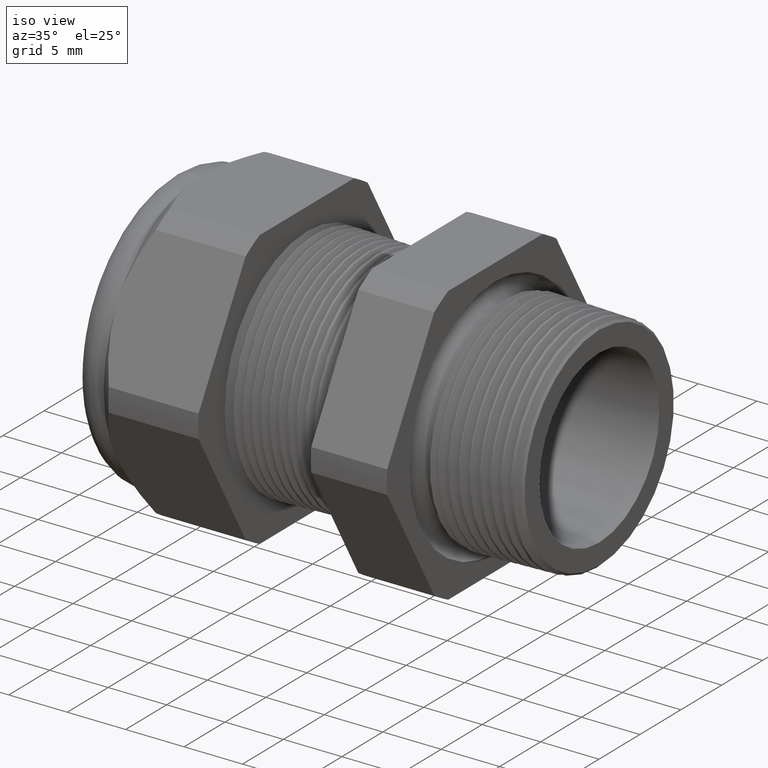
[diagram: clean part render]
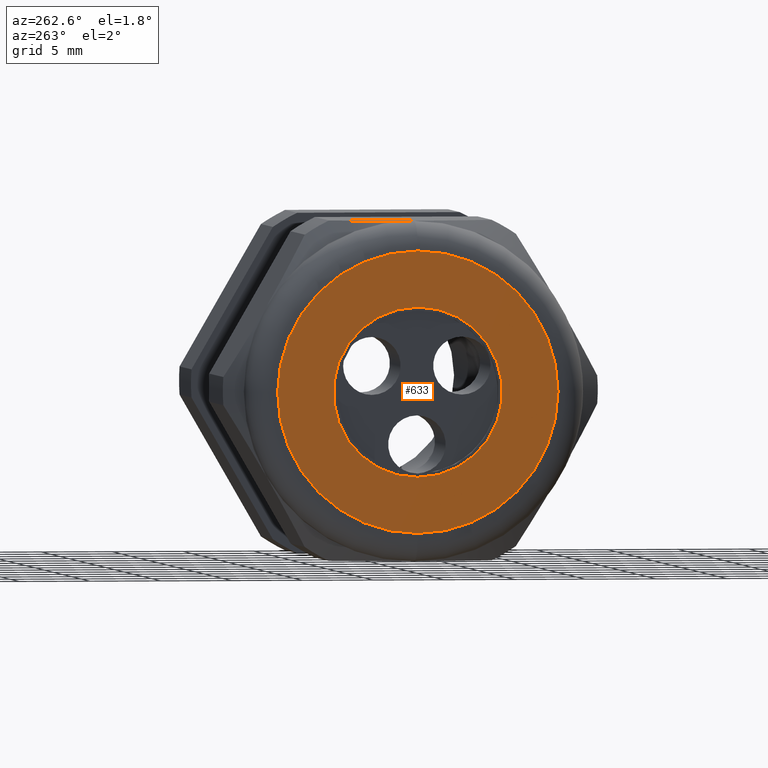
[diagram: tour spotlight — one face highlighted and labeled with its STEP entity id]
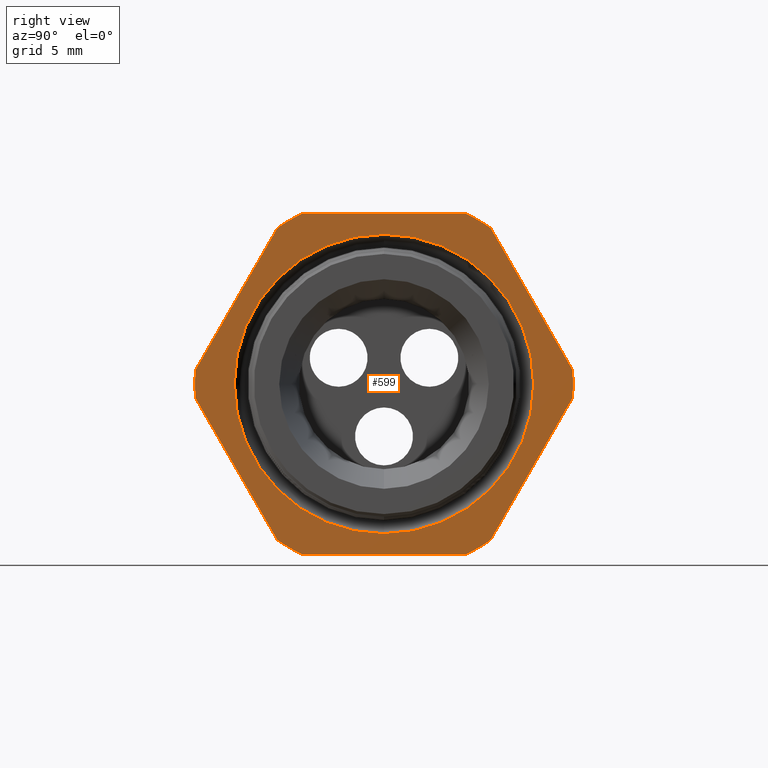
[diagram: tour spotlight — one face highlighted and labeled with its STEP entity id]
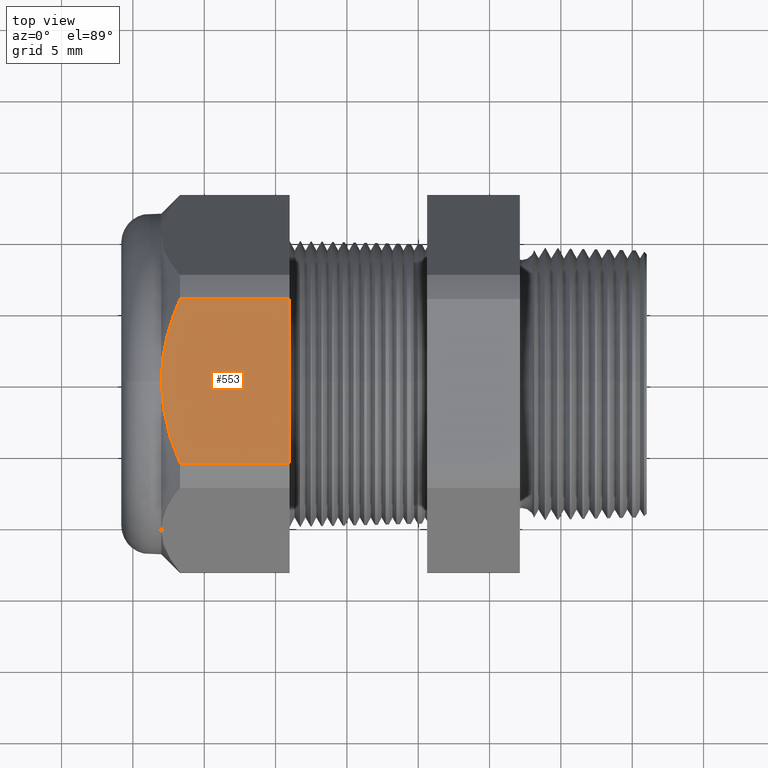
[diagram: tour spotlight — one face highlighted and labeled with its STEP entity id]
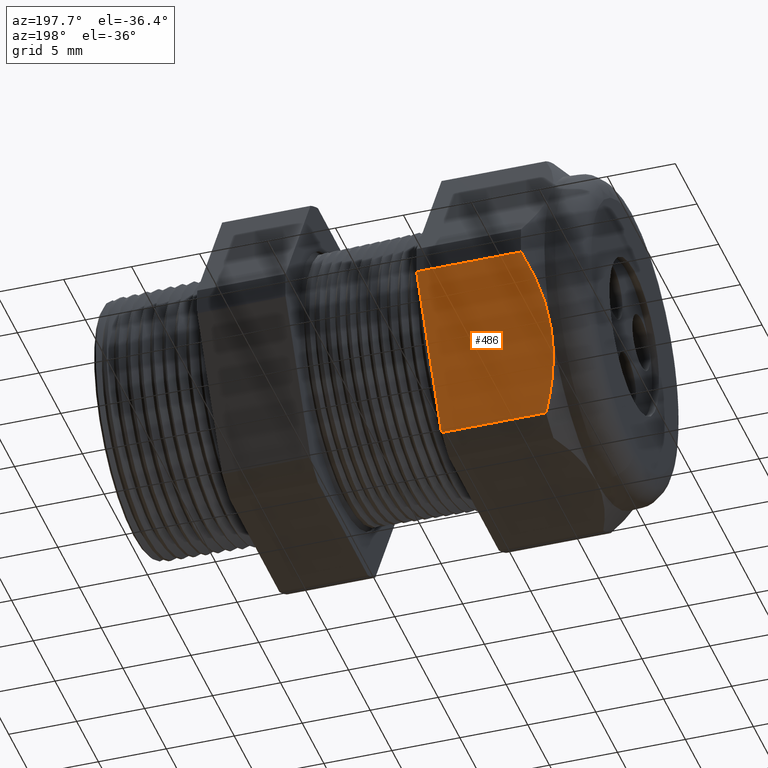
[diagram: tour spotlight — one face highlighted and labeled with its STEP entity id]
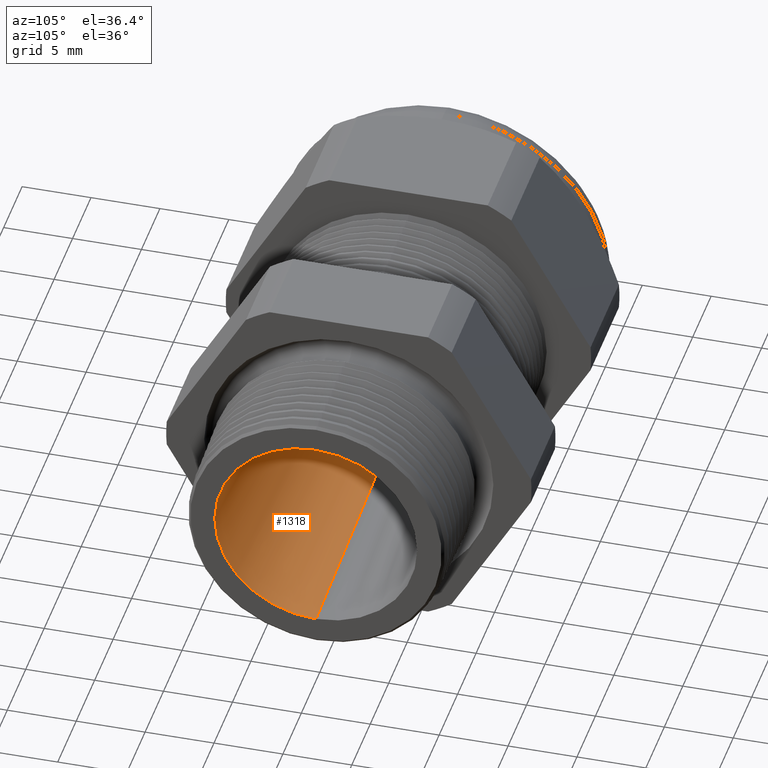
[diagram: tour spotlight — one face highlighted and labeled with its STEP entity id]
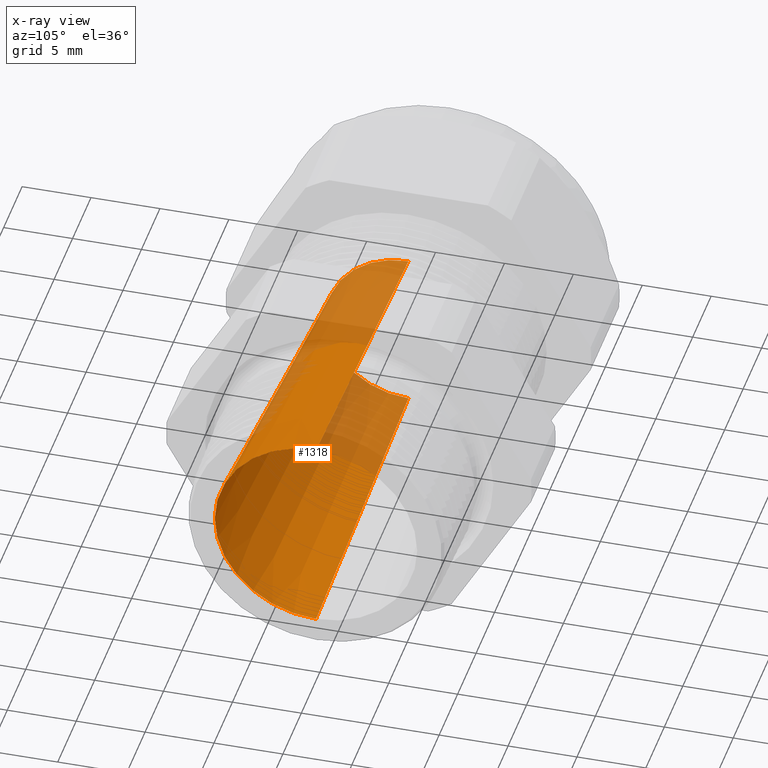
[diagram: x-ray of the same camera — body ghosted, this tour face saturated]
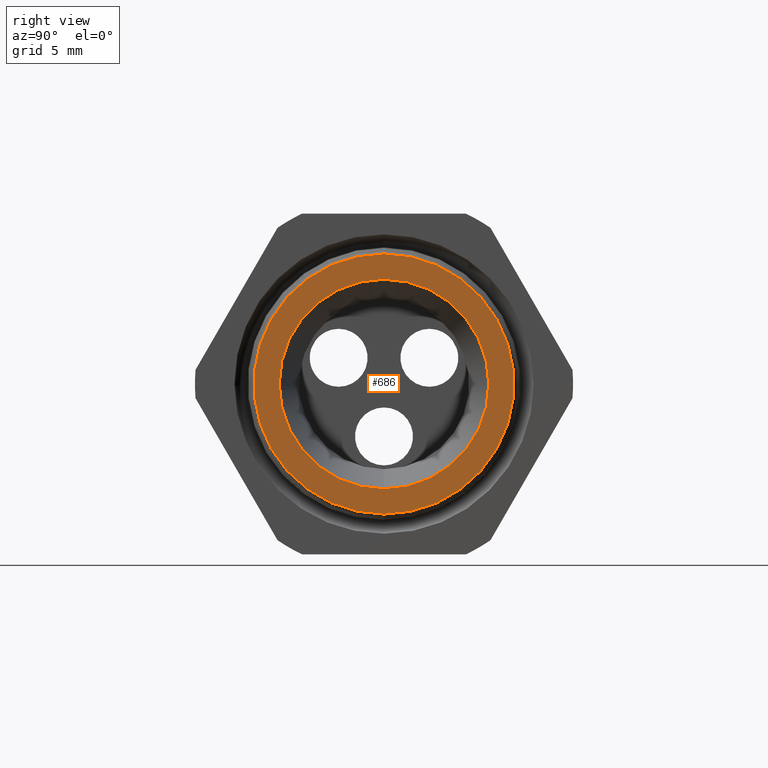
[diagram: tour spotlight — one face highlighted and labeled with its STEP entity id]
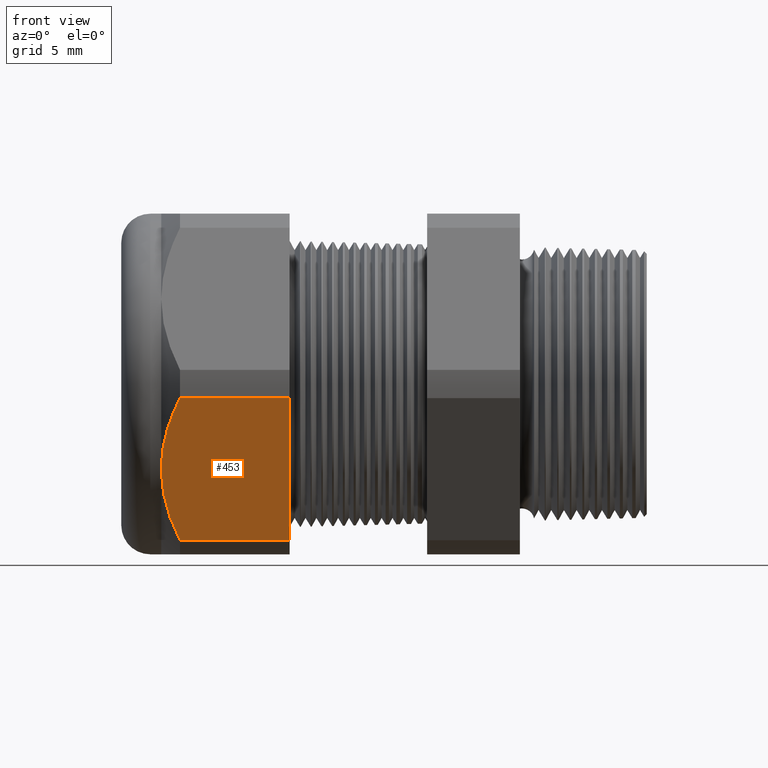
[diagram: tour spotlight — one face highlighted and labeled with its STEP entity id]
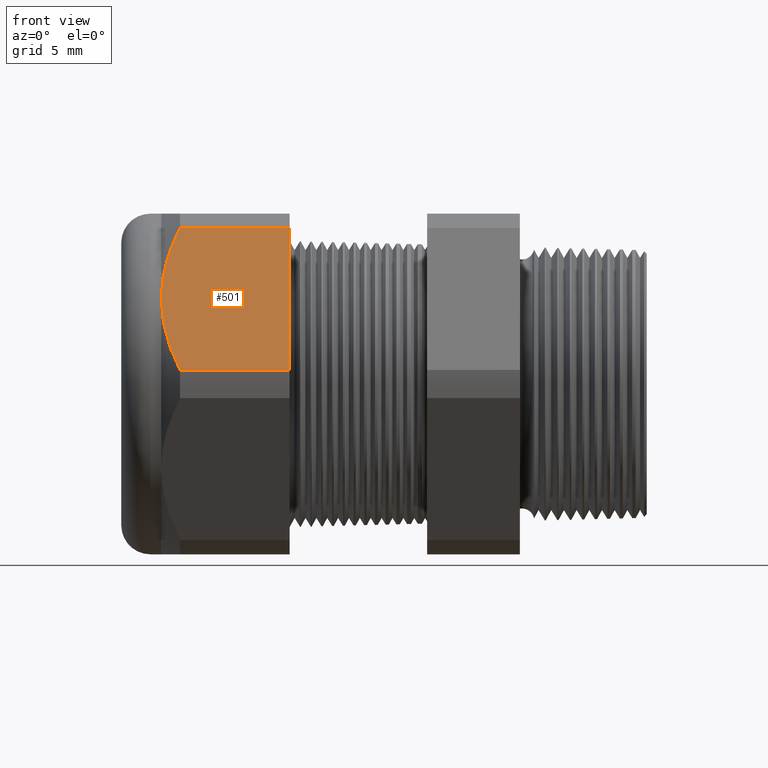
[diagram: tour spotlight — one face highlighted and labeled with its STEP entity id]
A machine part: a face-by-face anatomy tour. The part has 192 B-rep faces; the first image is the clean iso view, then the 8 largest visible faces are spotlighted one at a time (largest first), each with its STEP entity span.

Face 1 — auxiliary view, entity #633. In plain terms, the highlighted planar face has unit normal (-1, 0, 0).
Definition (entity closure, byte-faithful):
#615 = ORIENTED_EDGE ( 'NONE', *, *, #616, .T. ) ;
#616 = EDGE_CURVE ( 'NONE', #1390, #1389, #3014, .T. ) ;
#617 = ORIENTED_EDGE ( 'NONE', *, *, #1388, .T. ) ;
#633 = ADVANCED_FACE ( 'NONE', ( #3045, #3044 ), #3043, .T. ) ;
#634 = EDGE_LOOP ( 'NONE', ( #691, #692 ) ) ;
#691 = ORIENTED_EDGE ( 'NONE', *, *, #1334, .T. ) ;
#692 = ORIENTED_EDGE ( 'NONE', *, *, #693, .T. ) ;
#693 = EDGE_CURVE ( 'NONE', #1332, #1335, #3186, .T. ) ;
#694 = EDGE_LOOP ( 'NONE', ( #615, #617 ) ) ;
#1332 = VERTEX_POINT ( 'NONE', #4099 ) ;
#1334 = EDGE_CURVE ( 'NONE', #1335, #1332, #4098, .T. ) ;
#1335 = VERTEX_POINT ( 'NONE', #4093 ) ;
#1388 = EDGE_CURVE ( 'NONE', #1389, #1390, #4247, .T. ) ;
#1389 = VERTEX_POINT ( 'NONE', #4238 ) ;
#1390 = VERTEX_POINT ( 'NONE', #4237 ) ;
#3011 = DIRECTION ( 'NONE',  ( 0.0000000000000000000, 0.0000000000000000000, -1.000000000000000000 ) ) ;
#3012 = DIRECTION ( 'NONE',  ( 1.000000000000000000, 0.0000000000000000000, 0.0000000000000000000 ) ) ;
#3013 = AXIS2_PLACEMENT_3D ( 'NONE', #3031, #3012, #3011 ) ;
#3014 = CIRCLE ( 'NONE', #3013, 0.2349999999999999900 ) ;
#3031 = CARTESIAN_POINT ( 'NONE',  ( -1.409999999999999900, 0.0000000000000000000, 0.0000000000000000000 ) ) ;
#3039 = DIRECTION ( 'NONE',  ( 0.0000000000000000000, 0.0000000000000000000, 1.000000000000000000 ) ) ;
#3040 = DIRECTION ( 'NONE',  ( -1.000000000000000000, 0.0000000000000000000, 0.0000000000000000000 ) ) ;
#3041 = CARTESIAN_POINT ( 'NONE',  ( -1.409999999999999900, 0.4699999999999999200, 0.0000000000000000000 ) ) ;
#3042 = AXIS2_PLACEMENT_3D ( 'NONE', #3041, #3040, #3039 ) ;
#3043 = PLANE ( 'NONE',  #3042 ) ;
#3044 = FACE_BOUND ( 'NONE', #694, .T. ) ;
#3045 = FACE_OUTER_BOUND ( 'NONE', #634, .T. ) ;
#3182 = DIRECTION ( 'NONE',  ( 0.0000000000000000000, 0.0000000000000000000, 1.000000000000000000 ) ) ;
#3183 = DIRECTION ( 'NONE',  ( -1.000000000000000000, 0.0000000000000000000, 0.0000000000000000000 ) ) ;
#3184 = CARTESIAN_POINT ( 'NONE',  ( -1.409999999999999900, 0.0000000000000000000, 0.0000000000000000000 ) ) ;
#3185 = AXIS2_PLACEMENT_3D ( 'NONE', #3184, #3183, #3182 ) ;
#3186 = CIRCLE ( 'NONE', #3185, 0.3899999999999999600 ) ;
#4093 = CARTESIAN_POINT ( 'NONE',  ( -1.409999999999999900, 0.0000000000000000000, 0.3899999999999999600 ) ) ;
#4094 = DIRECTION ( 'NONE',  ( 0.0000000000000000000, 0.0000000000000000000, 1.000000000000000000 ) ) ;
#4095 = DIRECTION ( 'NONE',  ( -1.000000000000000000, 0.0000000000000000000, 0.0000000000000000000 ) ) ;
#4096 = CARTESIAN_POINT ( 'NONE',  ( -1.409999999999999900, 0.0000000000000000000, 0.0000000000000000000 ) ) ;
#4097 = AXIS2_PLACEMENT_3D ( 'NONE', #4096, #4095, #4094 ) ;
#4098 = CIRCLE ( 'NONE', #4097, 0.3899999999999999600 ) ;
#4099 = CARTESIAN_POINT ( 'NONE',  ( -1.409999999999999900, 5.265981236333617600E-017, -0.3899999999999999600 ) ) ;
#4237 = CARTESIAN_POINT ( 'NONE',  ( -1.409999999999999900, 0.0000000000000000000, -0.2349999999999999900 ) ) ;
#4238 = CARTESIAN_POINT ( 'NONE',  ( -1.409999999999999900, 2.877919977996279800E-017, 0.2349999999999999900 ) ) ;
#4239 = DIRECTION ( 'NONE',  ( 0.0000000000000000000, 0.0000000000000000000, -1.000000000000000000 ) ) ;
#4240 = DIRECTION ( 'NONE',  ( 1.000000000000000000, 0.0000000000000000000, 0.0000000000000000000 ) ) ;
#4241 = CARTESIAN_POINT ( 'NONE',  ( -1.409999999999999900, 0.0000000000000000000, 0.0000000000000000000 ) ) ;
#4242 = AXIS2_PLACEMENT_3D ( 'NONE', #4241, #4240, #4239 ) ;
#4247 = CIRCLE ( 'NONE', #4242, 0.2349999999999999900 ) ;

Face 2 — right view, entity #599. In plain terms, the highlighted planar face has unit normal (1, 0, 0).
Definition (entity closure, byte-faithful):
#570 = EDGE_CURVE ( 'NONE', #653, #571, #2914, .T. ) ;
#571 = VERTEX_POINT ( 'NONE', #2910 ) ;
#572 = ORIENTED_EDGE ( 'NONE', *, *, #573, .T. ) ;
#573 = EDGE_CURVE ( 'NONE', #571, #574, #2908, .T. ) ;
#574 = VERTEX_POINT ( 'NONE', #2675 ) ;
#575 = ORIENTED_EDGE ( 'NONE', *, *, #576, .T. ) ;
#576 = EDGE_CURVE ( 'NONE', #574, #577, #2971, .T. ) ;
#577 = VERTEX_POINT ( 'NONE', #2966 ) ;
#578 = ORIENTED_EDGE ( 'NONE', *, *, #635, .T. ) ;
#579 = VERTEX_POINT ( 'NONE', #2965 ) ;
#580 = VERTEX_POINT ( 'NONE', #2964 ) ;
#581 = ORIENTED_EDGE ( 'NONE', *, *, #582, .T. ) ;
#582 = EDGE_CURVE ( 'NONE', #580, #583, #2963, .T. ) ;
#583 = VERTEX_POINT ( 'NONE', #2958 ) ;
#584 = ORIENTED_EDGE ( 'NONE', *, *, #585, .T. ) ;
#585 = EDGE_CURVE ( 'NONE', #583, #586, #2957, .T. ) ;
#586 = VERTEX_POINT ( 'NONE', #2953 ) ;
#587 = ORIENTED_EDGE ( 'NONE', *, *, #588, .T. ) ;
#588 = EDGE_CURVE ( 'NONE', #586, #589, #2952, .T. ) ;
#589 = VERTEX_POINT ( 'NONE', #2947 ) ;
#590 = ORIENTED_EDGE ( 'NONE', *, *, #591, .T. ) ;
#591 = EDGE_CURVE ( 'NONE', #589, #592, #2946, .T. ) ;
#592 = VERTEX_POINT ( 'NONE', #2941 ) ;
#593 = ORIENTED_EDGE ( 'NONE', *, *, #649, .T. ) ;
#599 = ADVANCED_FACE ( 'NONE', ( #2993, #2992 ), #2991, .T. ) ;
#600 = EDGE_LOOP ( 'NONE', ( #601, #603 ) ) ;
#601 = ORIENTED_EDGE ( 'NONE', *, *, #602, .F. ) ;
#602 = EDGE_CURVE ( 'NONE', #1559, #1557, #2986, .T. ) ;
#603 = ORIENTED_EDGE ( 'NONE', *, *, #1615, .F. ) ;
#604 = EDGE_LOOP ( 'NONE', ( #605, #581, #584, #587, #590, #593, #651, #654, #572, #575, #578, #637 ) ) ;
#605 = ORIENTED_EDGE ( 'NONE', *, *, #606, .T. ) ;
#606 = EDGE_CURVE ( 'NONE', #579, #580, #2981, .T. ) ;
#635 = EDGE_CURVE ( 'NONE', #577, #636, #3038, .T. ) ;
#636 = VERTEX_POINT ( 'NONE', #3034 ) ;
#637 = ORIENTED_EDGE ( 'NONE', *, *, #638, .T. ) ;
#638 = EDGE_CURVE ( 'NONE', #636, #579, #3096, .T. ) ;
#649 = EDGE_CURVE ( 'NONE', #592, #650, #3068, .T. ) ;
#650 = VERTEX_POINT ( 'NONE', #3064 ) ;
#651 = ORIENTED_EDGE ( 'NONE', *, *, #652, .T. ) ;
#652 = EDGE_CURVE ( 'NONE', #650, #653, #3126, .T. ) ;
#653 = VERTEX_POINT ( 'NONE', #3122 ) ;
#654 = ORIENTED_EDGE ( 'NONE', *, *, #570, .T. ) ;
#1557 = VERTEX_POINT ( 'NONE', #4473 ) ;
#1559 = VERTEX_POINT ( 'NONE', #4472 ) ;
#1615 = EDGE_CURVE ( 'NONE', #1557, #1559, #4570, .T. ) ;
#2675 = CARTESIAN_POINT ( 'NONE',  ( -0.3100000000000000000, -0.2938165587564942600, -0.4310947921287053300 ) ) ;
#2676 = VECTOR ( 'NONE', #2687, 39.37007874015748900 ) ;
#2678 = CARTESIAN_POINT ( 'NONE',  ( -0.3100000000000000000, -0.1720319397786862800, -0.6420319397786864400 ) ) ;
#2687 = DIRECTION ( 'NONE',  ( 0.0000000000000000000, 0.5000000000000001100, -0.8660254037844386000 ) ) ;
#2908 = LINE ( 'NONE', #2678, #2676 ) ;
#2910 = CARTESIAN_POINT ( 'NONE',  ( -0.3100000000000000000, -0.5202473208008777700, -0.03890520787129495000 ) ) ;
#2911 = DIRECTION ( 'NONE',  ( 0.0000000000000000000, 0.0000000000000000000, -1.000000000000000000 ) ) ;
#2912 = DIRECTION ( 'NONE',  ( 1.000000000000000000, 0.0000000000000000000, 0.0000000000000000000 ) ) ;
#2913 = AXIS2_PLACEMENT_3D ( 'NONE', #2919, #2912, #2911 ) ;
#2914 = CIRCLE ( 'NONE', #2913, 0.5217000000000000500 ) ;
#2919 = CARTESIAN_POINT ( 'NONE',  ( -0.3100000000000000000, 0.0000000000000000000, 0.0000000000000000000 ) ) ;
#2941 = CARTESIAN_POINT ( 'NONE',  ( -0.3100000000000000000, -0.2264307620443835300, 0.4699999999999997000 ) ) ;
#2943 = DIRECTION ( 'NONE',  ( 0.0000000000000000000, -1.000000000000000000, 0.0000000000000000000 ) ) ;
#2944 = VECTOR ( 'NONE', #2943, 39.37007874015748100 ) ;
#2945 = CARTESIAN_POINT ( 'NONE',  ( -0.3100000000000000000, 0.9399999999999999500, 0.4699999999999999200 ) ) ;
#2946 = LINE ( 'NONE', #2945, #2944 ) ;
#2947 = CARTESIAN_POINT ( 'NONE',  ( -0.3100000000000000000, 0.2264307620443832800, 0.4699999999999999200 ) ) ;
#2948 = DIRECTION ( 'NONE',  ( 0.0000000000000000000, 0.0000000000000000000, -1.000000000000000000 ) ) ;
#2949 = DIRECTION ( 'NONE',  ( 1.000000000000000000, 0.0000000000000000000, 0.0000000000000000000 ) ) ;
#2950 = CARTESIAN_POINT ( 'NONE',  ( -0.3100000000000000000, 0.0000000000000000000, 0.0000000000000000000 ) ) ;
#2951 = AXIS2_PLACEMENT_3D ( 'NONE', #2950, #2949, #2948 ) ;
#2952 = CIRCLE ( 'NONE', #2951, 0.5217000000000000500 ) ;
#2953 = CARTESIAN_POINT ( 'NONE',  ( -0.3100000000000000000, 0.2938165587564947600, 0.4310947921287048800 ) ) ;
#2954 = DIRECTION ( 'NONE',  ( 0.0000000000000000000, -0.5000000000000001100, 0.8660254037844386000 ) ) ;
#2955 = VECTOR ( 'NONE', #2954, 39.37007874015748100 ) ;
#2956 = CARTESIAN_POINT ( 'NONE',  ( -0.3100000000000000000, 0.6420319397786862200, -0.1720319397786861100 ) ) ;
#2957 = LINE ( 'NONE', #2956, #2955 ) ;
#2958 = CARTESIAN_POINT ( 'NONE',  ( -0.3100000000000000000, 0.5202473208008776600, 0.03890520787129531800 ) ) ;
#2959 = DIRECTION ( 'NONE',  ( 0.0000000000000000000, 0.0000000000000000000, -1.000000000000000000 ) ) ;
#2960 = DIRECTION ( 'NONE',  ( 1.000000000000000000, 0.0000000000000000000, 0.0000000000000000000 ) ) ;
#2961 = CARTESIAN_POINT ( 'NONE',  ( -0.3100000000000000000, 0.0000000000000000000, 0.0000000000000000000 ) ) ;
#2962 = AXIS2_PLACEMENT_3D ( 'NONE', #2961, #2960, #2959 ) ;
#2963 = CIRCLE ( 'NONE', #2962, 0.5217000000000000500 ) ;
#2964 = CARTESIAN_POINT ( 'NONE',  ( -0.3100000000000000000, 0.5202473208008778800, -0.03890520787129497800 ) ) ;
#2965 = CARTESIAN_POINT ( 'NONE',  ( -0.3100000000000000000, 0.2938165587564948700, -0.4310947921287048800 ) ) ;
#2966 = CARTESIAN_POINT ( 'NONE',  ( -0.3100000000000000000, -0.2264307620443830900, -0.4700000000000000300 ) ) ;
#2967 = DIRECTION ( 'NONE',  ( 0.0000000000000000000, 0.0000000000000000000, -1.000000000000000000 ) ) ;
#2968 = DIRECTION ( 'NONE',  ( 1.000000000000000000, 0.0000000000000000000, 0.0000000000000000000 ) ) ;
#2969 = CARTESIAN_POINT ( 'NONE',  ( -0.3100000000000000000, 0.0000000000000000000, 0.0000000000000000000 ) ) ;
#2970 = AXIS2_PLACEMENT_3D ( 'NONE', #2969, #2968, #2967 ) ;
#2971 = CIRCLE ( 'NONE', #2970, 0.5217000000000000500 ) ;
#2978 = DIRECTION ( 'NONE',  ( 0.0000000000000000000, 0.4999999999999998300, 0.8660254037844388200 ) ) ;
#2979 = VECTOR ( 'NONE', #2978, 39.37007874015748100 ) ;
#2980 = CARTESIAN_POINT ( 'NONE',  ( -0.3100000000000000000, 0.6420319397786862200, 0.1720319397786860500 ) ) ;
#2981 = LINE ( 'NONE', #2980, #2979 ) ;
#2982 = DIRECTION ( 'NONE',  ( 0.0000000000000000000, 0.0000000000000000000, -1.000000000000000000 ) ) ;
#2983 = DIRECTION ( 'NONE',  ( 1.000000000000000000, 0.0000000000000000000, 0.0000000000000000000 ) ) ;
#2984 = CARTESIAN_POINT ( 'NONE',  ( -0.3100000000000000000, 0.0000000000000000000, 0.0000000000000000000 ) ) ;
#2985 = AXIS2_PLACEMENT_3D ( 'NONE', #2984, #2983, #2982 ) ;
#2986 = CIRCLE ( 'NONE', #2985, 0.4130016155952137600 ) ;
#2987 = DIRECTION ( 'NONE',  ( 0.0000000000000000000, 0.0000000000000000000, -1.000000000000000000 ) ) ;
#2988 = DIRECTION ( 'NONE',  ( 1.000000000000000000, 0.0000000000000000000, 0.0000000000000000000 ) ) ;
#2989 = CARTESIAN_POINT ( 'NONE',  ( -0.3100000000000000000, 0.9399999999999999500, 0.0000000000000000000 ) ) ;
#2990 = AXIS2_PLACEMENT_3D ( 'NONE', #2989, #2988, #2987 ) ;
#2991 = PLANE ( 'NONE',  #2990 ) ;
#2992 = FACE_OUTER_BOUND ( 'NONE', #604, .T. ) ;
#2993 = FACE_BOUND ( 'NONE', #600, .T. ) ;
#3034 = CARTESIAN_POINT ( 'NONE',  ( -0.3100000000000000000, 0.2264307620443831200, -0.4700000000000000300 ) ) ;
#3035 = DIRECTION ( 'NONE',  ( 0.0000000000000000000, 1.000000000000000000, 0.0000000000000000000 ) ) ;
#3036 = VECTOR ( 'NONE', #3035, 39.37007874015748100 ) ;
#3037 = CARTESIAN_POINT ( 'NONE',  ( -0.3100000000000000000, 0.9399999999999999500, -0.4700000000000000300 ) ) ;
#3038 = LINE ( 'NONE', #3037, #3036 ) ;
#3064 = CARTESIAN_POINT ( 'NONE',  ( -0.3100000000000000000, -0.2938165587564945900, 0.4310947921287050500 ) ) ;
#3065 = DIRECTION ( 'NONE',  ( 0.0000000000000000000, 0.0000000000000000000, -1.000000000000000000 ) ) ;
#3066 = DIRECTION ( 'NONE',  ( 1.000000000000000000, 0.0000000000000000000, 0.0000000000000000000 ) ) ;
#3067 = AXIS2_PLACEMENT_3D ( 'NONE', #3073, #3066, #3065 ) ;
#3068 = CIRCLE ( 'NONE', #3067, 0.5217000000000000500 ) ;
#3073 = CARTESIAN_POINT ( 'NONE',  ( -0.3100000000000000000, 0.0000000000000000000, 0.0000000000000000000 ) ) ;
#3092 = DIRECTION ( 'NONE',  ( 0.0000000000000000000, 0.0000000000000000000, -1.000000000000000000 ) ) ;
#3093 = DIRECTION ( 'NONE',  ( 1.000000000000000000, 0.0000000000000000000, 0.0000000000000000000 ) ) ;
#3094 = CARTESIAN_POINT ( 'NONE',  ( -0.3100000000000000000, 0.0000000000000000000, 0.0000000000000000000 ) ) ;
#3095 = AXIS2_PLACEMENT_3D ( 'NONE', #3094, #3093, #3092 ) ;
#3096 = CIRCLE ( 'NONE', #3095, 0.5217000000000000500 ) ;
#3122 = CARTESIAN_POINT ( 'NONE',  ( -0.3100000000000000000, -0.5202473208008777700, 0.03890520787129464500 ) ) ;
#3123 = DIRECTION ( 'NONE',  ( 0.0000000000000000000, -0.4999999999999998300, -0.8660254037844388200 ) ) ;
#3124 = VECTOR ( 'NONE', #3123, 39.37007874015748100 ) ;
#3125 = CARTESIAN_POINT ( 'NONE',  ( -0.3100000000000000000, -0.1720319397786862800, 0.6420319397786858900 ) ) ;
#3126 = LINE ( 'NONE', #3125, #3124 ) ;
#4472 = CARTESIAN_POINT ( 'NONE',  ( -0.3100000000000000000, 0.0000000000000000000, -0.4130016155952137600 ) ) ;
#4473 = CARTESIAN_POINT ( 'NONE',  ( -0.3100000000000000000, 5.057811065813640600E-017, 0.4130016155952137600 ) ) ;
#4567 = DIRECTION ( 'NONE',  ( 0.0000000000000000000, 0.0000000000000000000, -1.000000000000000000 ) ) ;
#4568 = DIRECTION ( 'NONE',  ( 1.000000000000000000, 0.0000000000000000000, 0.0000000000000000000 ) ) ;
#4569 = AXIS2_PLACEMENT_3D ( 'NONE', #4576, #4568, #4567 ) ;
#4570 = CIRCLE ( 'NONE', #4569, 0.4130016155952137600 ) ;
#4576 = CARTESIAN_POINT ( 'NONE',  ( -0.3100000000000000000, 0.0000000000000000000, 0.0000000000000000000 ) ) ;

Face 3 — top view, entity #553. In plain terms, the highlighted planar face has unit normal (0, 0, 1).
Definition (entity closure, byte-faithful):
#489 = EDGE_CURVE ( 'NONE', #490, #491, #2738, .T. ) ;
#490 = VERTEX_POINT ( 'NONE', #2734 ) ;
#491 = VERTEX_POINT ( 'NONE', #2733 ) ;
#538 = EDGE_CURVE ( 'NONE', #557, #490, #2879, .T. ) ;
#553 = ADVANCED_FACE ( 'NONE', ( #2897 ), #2896, .T. ) ;
#554 = EDGE_LOOP ( 'NONE', ( #555, #559, #561, #563, #564 ) ) ;
#555 = ORIENTED_EDGE ( 'NONE', *, *, #556, .T. ) ;
#556 = EDGE_CURVE ( 'NONE', #557, #558, #2891, .T. ) ;
#557 = VERTEX_POINT ( 'NONE', #2887 ) ;
#558 = VERTEX_POINT ( 'NONE', #2886 ) ;
#559 = ORIENTED_EDGE ( 'NONE', *, *, #560, .T. ) ;
#560 = EDGE_CURVE ( 'NONE', #558, #1373, #2885, .T. ) ;
#561 = ORIENTED_EDGE ( 'NONE', *, *, #562, .T. ) ;
#562 = EDGE_CURVE ( 'NONE', #1373, #491, #2940, .T. ) ;
#563 = ORIENTED_EDGE ( 'NONE', *, *, #489, .F. ) ;
#564 = ORIENTED_EDGE ( 'NONE', *, *, #538, .F. ) ;
#1373 = VERTEX_POINT ( 'NONE', #4207 ) ;
#2733 = CARTESIAN_POINT ( 'NONE',  ( -1.248063779527559100, -0.2264307620443835300, 0.4699999999999999200 ) ) ;
#2734 = CARTESIAN_POINT ( 'NONE',  ( -0.9454330708661418100, -0.2264307620443835300, 0.4699999999999997000 ) ) ;
#2735 = DIRECTION ( 'NONE',  ( -1.000000000000000000, 0.0000000000000000000, 0.0000000000000000000 ) ) ;
#2736 = VECTOR ( 'NONE', #2735, 39.37007874015748100 ) ;
#2737 = CARTESIAN_POINT ( 'NONE',  ( 0.03999999999999984800, -0.2264307620443835300, 0.4699999999999997000 ) ) ;
#2738 = LINE ( 'NONE', #2737, #2736 ) ;
#2872 = DIRECTION ( 'NONE',  ( 0.0000000000000000000, -1.000000000000000000, 0.0000000000000000000 ) ) ;
#2873 = VECTOR ( 'NONE', #2872, 39.37007874015748100 ) ;
#2874 = CARTESIAN_POINT ( 'NONE',  ( -0.9454330708661418100, 0.3950000000000000200, 0.4699999999999999200 ) ) ;
#2879 = LINE ( 'NONE', #2874, #2873 ) ;
#2881 = CARTESIAN_POINT ( 'NONE',  ( -1.275692781244511800, 0.1533252955870068600, 0.4699999999999999200 ) ) ;
#2882 = CARTESIAN_POINT ( 'NONE',  ( -1.262974602953725900, 0.1903621927138390800, 0.4699999999999999700 ) ) ;
#2883 = CARTESIAN_POINT ( 'NONE',  ( -1.255800509309333400, 0.2086052162099335200, 0.4699999999999997500 ) ) ;
#2884 = CARTESIAN_POINT ( 'NONE',  ( -1.248063779527559100, 0.2264307620443832800, 0.4699999999999999200 ) ) ;
#2885 = B_SPLINE_CURVE_WITH_KNOTS ( 'NONE', 3,
 ( #2884, #2883, #2882, #2881, #2939, #2938, #2937, #2936, #2935, #2934 ),
 .UNSPECIFIED., .F., .F.,
 ( 4, 2, 2, 2, 4 ),
 ( 0.009140358755258081200, 0.01061001397932213200, 0.01207966920338618100, 0.01354932442745022900, 0.01501897965151428000 ),
 .UNSPECIFIED. ) ;
#2886 = CARTESIAN_POINT ( 'NONE',  ( -1.248063779527559100, 0.2264307620443832800, 0.4699999999999999200 ) ) ;
#2887 = CARTESIAN_POINT ( 'NONE',  ( -0.9454330708661418100, 0.2264307620443832800, 0.4699999999999999200 ) ) ;
#2888 = DIRECTION ( 'NONE',  ( -1.000000000000000000, 0.0000000000000000000, 0.0000000000000000000 ) ) ;
#2889 = VECTOR ( 'NONE', #2888, 39.37007874015748100 ) ;
#2890 = CARTESIAN_POINT ( 'NONE',  ( 0.03999999999999984800, 0.2264307620443832800, 0.4699999999999999200 ) ) ;
#2891 = LINE ( 'NONE', #2890, #2889 ) ;
#2892 = DIRECTION ( 'NONE',  ( 1.000000000000000000, 0.0000000000000000000, 0.0000000000000000000 ) ) ;
#2893 = DIRECTION ( 'NONE',  ( 0.0000000000000000000, 0.0000000000000000000, 1.000000000000000000 ) ) ;
#2894 = CARTESIAN_POINT ( 'NONE',  ( 0.03999999999999984800, -0.2264307620443832800, 0.4699999999999999200 ) ) ;
#2895 = AXIS2_PLACEMENT_3D ( 'NONE', #2894, #2893, #2892 ) ;
#2896 = PLANE ( 'NONE',  #2895 ) ;
#2897 = FACE_OUTER_BOUND ( 'NONE', #554, .T. ) ;
#2923 = CARTESIAN_POINT ( 'NONE',  ( -1.248063779527559100, -0.2264307620443835300, 0.4699999999999999200 ) ) ;
#2924 = CARTESIAN_POINT ( 'NONE',  ( -1.255800659726855400, -0.2086048696456209400, 0.4699999999999999200 ) ) ;
#2925 = CARTESIAN_POINT ( 'NONE',  ( -1.262949366997028200, -0.1904348960138968800, 0.4699999999999999700 ) ) ;
#2926 = CARTESIAN_POINT ( 'NONE',  ( -1.275712352585576000, -0.1532690879941745500, 0.4699999999999999200 ) ) ;
#2927 = CARTESIAN_POINT ( 'NONE',  ( -1.281231388637372700, -0.1345390626635396800, 0.4699999999999999700 ) ) ;
#2928 = CARTESIAN_POINT ( 'NONE',  ( -1.294778598172672500, -0.07783554612607096500, 0.4699999999999998600 ) ) ;
#2929 = CARTESIAN_POINT ( 'NONE',  ( -1.299763779527558300, -0.03934296915062178400, 0.4699999999999998600 ) ) ;
#2930 = CARTESIAN_POINT ( 'NONE',  ( -1.299763779527559200, 0.0000000000000000000, 0.4699999999999999200 ) ) ;
#2934 = CARTESIAN_POINT ( 'NONE',  ( -1.299763779527559200, 0.0000000000000000000, 0.4699999999999999200 ) ) ;
#2935 = CARTESIAN_POINT ( 'NONE',  ( -1.299763779527559200, 0.01964242875915821900, 0.4699999999999999200 ) ) ;
#2936 = CARTESIAN_POINT ( 'NONE',  ( -1.298517019735540900, 0.03924163778662363000, 0.4699999999999999700 ) ) ;
#2937 = CARTESIAN_POINT ( 'NONE',  ( -1.293749478914868900, 0.07782038235249987000, 0.4699999999999999200 ) ) ;
#2938 = CARTESIAN_POINT ( 'NONE',  ( -1.290231001418866700, 0.09688970369981490800, 0.4699999999999999700 ) ) ;
#2939 = CARTESIAN_POINT ( 'NONE',  ( -1.281202062721105400, 0.1346420459264779700, 0.4699999999999999200 ) ) ;
#2940 = B_SPLINE_CURVE_WITH_KNOTS ( 'NONE', 3,
 ( #2930, #2929, #2928, #2927, #2926, #2925, #2924, #2923 ),
 .UNSPECIFIED., .F., .F.,
 ( 4, 2, 2, 4 ),
 ( 0.01501897965151428000, 0.01796263803772294200, 0.01943446723082727100, 0.02090629642393160300 ),
 .UNSPECIFIED. ) ;
#4207 = CARTESIAN_POINT ( 'NONE',  ( -1.299763779527559200, 0.0000000000000000000, 0.4699999999999999200 ) ) ;

Face 4 — auxiliary view, entity #486. In plain terms, the highlighted planar face has unit normal (0, 0.866, -0.5).
Definition (entity closure, byte-faithful):
#408 = ORIENTED_EDGE ( 'NONE', *, *, #409, .T. ) ;
#409 = EDGE_CURVE ( 'NONE', #410, #411, #2552, .T. ) ;
#410 = VERTEX_POINT ( 'NONE', #2548 ) ;
#411 = VERTEX_POINT ( 'NONE', #2547 ) ;
#412 = ORIENTED_EDGE ( 'NONE', *, *, #413, .T. ) ;
#413 = EDGE_CURVE ( 'NONE', #411, #1433, #2546, .T. ) ;
#414 = ORIENTED_EDGE ( 'NONE', *, *, #415, .T. ) ;
#415 = EDGE_CURVE ( 'NONE', #1433, #416, #2605, .T. ) ;
#416 = VERTEX_POINT ( 'NONE', #2604 ) ;
#417 = ORIENTED_EDGE ( 'NONE', *, *, #418, .F. ) ;
#418 = EDGE_CURVE ( 'NONE', #419, #416, #2587, .T. ) ;
#419 = VERTEX_POINT ( 'NONE', #2583 ) ;
#420 = ORIENTED_EDGE ( 'NONE', *, *, #472, .F. ) ;
#472 = EDGE_CURVE ( 'NONE', #410, #419, #2719, .T. ) ;
#486 = ADVANCED_FACE ( 'NONE', ( #2744 ), #2743, .T. ) ;
#487 = EDGE_LOOP ( 'NONE', ( #408, #412, #414, #417, #420 ) ) ;
#1433 = VERTEX_POINT ( 'NONE', #4291 ) ;
#2546 = B_SPLINE_CURVE_WITH_KNOTS ( 'NONE', 3,
 ( #2603, #2602, #2601, #2600, #2599, #2598, #2597, #2596, #2595, #2594 ),
 .UNSPECIFIED., .F., .F.,
 ( 4, 2, 2, 2, 4 ),
 ( 2.483251536698716100E-007, 0.002951677829872994700, 0.004427392582232654900, 0.005165249958412482400, 0.005903107334592311600 ),
 .UNSPECIFIED. ) ;
#2547 = CARTESIAN_POINT ( 'NONE',  ( -1.248063779527559100, 0.2938165587564948700, -0.4310947921287048800 ) ) ;
#2548 = CARTESIAN_POINT ( 'NONE',  ( -0.9454330708661418100, 0.2938165587564948700, -0.4310947921287048800 ) ) ;
#2549 = DIRECTION ( 'NONE',  ( -1.000000000000000000, 0.0000000000000000000, 0.0000000000000000000 ) ) ;
#2550 = VECTOR ( 'NONE', #2549, 39.37007874015748100 ) ;
#2551 = CARTESIAN_POINT ( 'NONE',  ( 0.03999999999999984800, 0.2938165587564948700, -0.4310947921287048800 ) ) ;
#2552 = LINE ( 'NONE', #2551, #2550 ) ;
#2583 = CARTESIAN_POINT ( 'NONE',  ( -0.9454330708661418100, 0.5202473208008776600, -0.03890520787129496400 ) ) ;
#2584 = DIRECTION ( 'NONE',  ( -1.000000000000000000, 0.0000000000000000000, 0.0000000000000000000 ) ) ;
#2585 = VECTOR ( 'NONE', #2584, 39.37007874015748100 ) ;
#2586 = CARTESIAN_POINT ( 'NONE',  ( 0.03999999999999984800, 0.5202473208008777700, -0.03890520787129496400 ) ) ;
#2587 = LINE ( 'NONE', #2586, #2585 ) ;
#2588 = CARTESIAN_POINT ( 'NONE',  ( -1.248063779527559100, 0.5202473208008777700, -0.03890520787129497100 ) ) ;
#2589 = CARTESIAN_POINT ( 'NONE',  ( -1.263717189021966500, 0.5022144712456754200, -0.07013901950615127100 ) ) ;
#2590 = CARTESIAN_POINT ( 'NONE',  ( -1.276822062588142100, 0.4835762490957484200, -0.1024213672325805200 ) ) ;
#2591 = CARTESIAN_POINT ( 'NONE',  ( -1.294818111347315200, 0.4458197490082083700, -0.1678175437001784800 ) ) ;
#2592 = CARTESIAN_POINT ( 'NONE',  ( -1.299763779527558500, 0.4266212606411439200, -0.2010703009804540900 ) ) ;
#2593 = CARTESIAN_POINT ( 'NONE',  ( -1.299763779527559200, 0.4070319397786864000, -0.2350000000000000100 ) ) ;
#2594 = CARTESIAN_POINT ( 'NONE',  ( -1.299763779527559200, 0.4070319397786864000, -0.2350000000000000100 ) ) ;
#2595 = CARTESIAN_POINT ( 'NONE',  ( -1.299763779527558900, 0.4021312490570416200, -0.2434882453220695600 ) ) ;
#2596 = CARTESIAN_POINT ( 'NONE',  ( -1.299453644849873200, 0.3971857355050536500, -0.2520541260636330900 ) ) ;
#2597 = CARTESIAN_POINT ( 'NONE',  ( -1.298221849142434700, 0.3873598765596236700, -0.2690730129851234300 ) ) ;
#2598 = CARTESIAN_POINT ( 'NONE',  ( -1.297304216752655800, 0.3824845463488701900, -0.2775173326138242200 ) ) ;
#2599 = CARTESIAN_POINT ( 'NONE',  ( -1.293700751481475100, 0.3679645453500629500, -0.3026667120697089700 ) ) ;
#2600 = CARTESIAN_POINT ( 'NONE',  ( -1.290164085422760700, 0.3584258972266239900, -0.3191881352550264800 ) ) ;
#2601 = CARTESIAN_POINT ( 'NONE',  ( -1.276620445010038000, 0.3301755151959552300, -0.3681192322653758500 ) ) ;
#2602 = CARTESIAN_POINT ( 'NONE',  ( -1.263697825203294900, 0.3118271010418954300, -0.3998996178185232900 ) ) ;
#2603 = CARTESIAN_POINT ( 'NONE',  ( -1.248063779527559100, 0.2938165587564948700, -0.4310947921287048800 ) ) ;
#2604 = CARTESIAN_POINT ( 'NONE',  ( -1.248063779527559100, 0.5202473208008777700, -0.03890520787129497100 ) ) ;
#2605 = B_SPLINE_CURVE_WITH_KNOTS ( 'NONE', 3,
 ( #2593, #2592, #2591, #2590, #2589, #2588 ),
 .UNSPECIFIED., .F., .F.,
 ( 4, 2, 4 ),
 ( 0.005903107334592311600, 0.008852512982428775400, 0.01180191863026523900 ),
 .UNSPECIFIED. ) ;
#2711 = DIRECTION ( 'NONE',  ( 0.0000000000000000000, 0.4999999999999998300, 0.8660254037844388200 ) ) ;
#2712 = VECTOR ( 'NONE', #2711, 39.37007874015748100 ) ;
#2713 = CARTESIAN_POINT ( 'NONE',  ( -0.9454330708661418100, 0.5057819397786861300, -0.06395998275257334900 ) ) ;
#2719 = LINE ( 'NONE', #2713, #2712 ) ;
#2739 = DIRECTION ( 'NONE',  ( 0.0000000000000000000, 0.4999999999999998300, 0.8660254037844388200 ) ) ;
#2740 = DIRECTION ( 'NONE',  ( 0.0000000000000000000, 0.8660254037844388200, -0.4999999999999998300 ) ) ;
#2741 = CARTESIAN_POINT ( 'NONE',  ( 0.03999999999999984800, 0.5202473208008777700, -0.03890520787129496400 ) ) ;
#2742 = AXIS2_PLACEMENT_3D ( 'NONE', #2741, #2740, #2739 ) ;
#2743 = PLANE ( 'NONE',  #2742 ) ;
#2744 = FACE_OUTER_BOUND ( 'NONE', #487, .T. ) ;
#4291 = CARTESIAN_POINT ( 'NONE',  ( -1.299763779527559200, 0.4070319397786864000, -0.2350000000000000100 ) ) ;

Face 5 — auxiliary view, entity #1318. An x-ray twin of the same camera follows (body ghosted, this face saturated) — the face is partly hidden behind the body. In plain terms, the highlighted conical surface has half-angle 3.148 deg.
Definition (entity closure, byte-faithful):
#1318 = ADVANCED_FACE ( 'NONE', ( #4066 ), #4064, .F. ) ;
#1319 = EDGE_LOOP ( 'NONE', ( #1320, #1324, #1380, #1383 ) ) ;
#1320 = ORIENTED_EDGE ( 'NONE', *, *, #1321, .F. ) ;
#1321 = EDGE_CURVE ( 'NONE', #1322, #1323, #4123, .T. ) ;
#1322 = VERTEX_POINT ( 'NONE', #4119 ) ;
#1323 = VERTEX_POINT ( 'NONE', #4118 ) ;
#1324 = ORIENTED_EDGE ( 'NONE', *, *, #1378, .T. ) ;
#1378 = EDGE_CURVE ( 'NONE', #1322, #1379, #4200, .T. ) ;
#1379 = VERTEX_POINT ( 'NONE', #4196 ) ;
#1380 = ORIENTED_EDGE ( 'NONE', *, *, #1381, .T. ) ;
#1381 = EDGE_CURVE ( 'NONE', #1379, #1382, #4195, .T. ) ;
#1382 = VERTEX_POINT ( 'NONE', #4190 ) ;
#1383 = ORIENTED_EDGE ( 'NONE', *, *, #1384, .F. ) ;
#1384 = EDGE_CURVE ( 'NONE', #1323, #1382, #4188, .T. ) ;
#3680 = VECTOR ( 'NONE', #3686, 39.37007874015748100 ) ;
#3686 = DIRECTION ( 'NONE',  ( 0.9984911057575849300, 0.0000000000000000000, -0.05491367519111593100 ) ) ;
#4060 = DIRECTION ( 'NONE',  ( 0.0000000000000000000, 0.0000000000000000000, -1.000000000000000000 ) ) ;
#4061 = DIRECTION ( 'NONE',  ( 1.000000000000000000, 0.0000000000000000000, 0.0000000000000000000 ) ) ;
#4062 = CARTESIAN_POINT ( 'NONE',  ( -0.9454330708661418100, 0.0000000000000000000, 0.0000000000000000000 ) ) ;
#4063 = AXIS2_PLACEMENT_3D ( 'NONE', #4062, #4061, #4060 ) ;
#4064 = CONICAL_SURFACE ( 'NONE', #4063, 0.2350000000000000100, 0.05494131151472639300 ) ;
#4065 = CARTESIAN_POINT ( 'NONE',  ( -0.9454330708661418100, 0.0000000000000000000, 0.0000000000000000000 ) ) ;
#4066 = FACE_OUTER_BOUND ( 'NONE', #1319, .T. ) ;
#4118 = CARTESIAN_POINT ( 'NONE',  ( -0.9454330708661418100, 0.0000000000000000000, -0.2350000000000000100 ) ) ;
#4119 = CARTESIAN_POINT ( 'NONE',  ( -0.9454330708661418100, 2.877919977996280400E-017, 0.2350000000000000100 ) ) ;
#4120 = DIRECTION ( 'NONE',  ( 0.0000000000000000000, 0.0000000000000000000, -1.000000000000000000 ) ) ;
#4121 = DIRECTION ( 'NONE',  ( 1.000000000000000000, 0.0000000000000000000, 0.0000000000000000000 ) ) ;
#4122 = AXIS2_PLACEMENT_3D ( 'NONE', #4065, #4121, #4120 ) ;
#4123 = CIRCLE ( 'NONE', #4122, 0.2350000000000000100 ) ;
#4187 = CARTESIAN_POINT ( 'NONE',  ( -0.9454330708661418100, 0.0000000000000000000, -0.2350000000000000100 ) ) ;
#4188 = LINE ( 'NONE', #4187, #3680 ) ;
#4190 = CARTESIAN_POINT ( 'NONE',  ( 0.03999999999999997300, 0.0000000000000000000, -0.2891955268946231900 ) ) ;
#4191 = DIRECTION ( 'NONE',  ( 0.0000000000000000000, 0.0000000000000000000, -1.000000000000000000 ) ) ;
#4192 = DIRECTION ( 'NONE',  ( 1.000000000000000000, 0.0000000000000000000, 0.0000000000000000000 ) ) ;
#4193 = CARTESIAN_POINT ( 'NONE',  ( 0.03999999999999997300, 0.0000000000000000000, 0.0000000000000000000 ) ) ;
#4194 = AXIS2_PLACEMENT_3D ( 'NONE', #4193, #4192, #4191 ) ;
#4195 = CIRCLE ( 'NONE', #4194, 0.2891955268946231900 ) ;
#4196 = CARTESIAN_POINT ( 'NONE',  ( 0.03999999999999997300, 3.541623763392326200E-017, 0.2891955268946231900 ) ) ;
#4197 = DIRECTION ( 'NONE',  ( 0.9984911057575849300, 6.724985655221754600E-018, 0.05491367519111593100 ) ) ;
#4198 = VECTOR ( 'NONE', #4197, 39.37007874015748100 ) ;
#4199 = CARTESIAN_POINT ( 'NONE',  ( -0.9454330708661418100, 2.877919977996280400E-017, 0.2350000000000000100 ) ) ;
#4200 = LINE ( 'NONE', #4199, #4198 ) ;

Face 6 — right view, entity #686. In plain terms, the highlighted planar face has unit normal (1, 0, 0).
Definition (entity closure, byte-faithful):
#664 = EDGE_LOOP ( 'NONE', ( #665, #666 ) ) ;
#665 = ORIENTED_EDGE ( 'NONE', *, *, #685, .F. ) ;
#666 = ORIENTED_EDGE ( 'NONE', *, *, #1381, .F. ) ;
#685 = EDGE_CURVE ( 'NONE', #1382, #1379, #3137, .T. ) ;
#686 = ADVANCED_FACE ( 'NONE', ( #3133, #3132 ), #3131, .T. ) ;
#687 = EDGE_LOOP ( 'NONE', ( #688, #690 ) ) ;
#688 = ORIENTED_EDGE ( 'NONE', *, *, #689, .T. ) ;
#689 = EDGE_CURVE ( 'NONE', #1348, #1347, #3191, .T. ) ;
#690 = ORIENTED_EDGE ( 'NONE', *, *, #1346, .T. ) ;
#1346 = EDGE_CURVE ( 'NONE', #1347, #1348, #4133, .T. ) ;
#1347 = VERTEX_POINT ( 'NONE', #4128 ) ;
#1348 = VERTEX_POINT ( 'NONE', #4186 ) ;
#1379 = VERTEX_POINT ( 'NONE', #4196 ) ;
#1381 = EDGE_CURVE ( 'NONE', #1379, #1382, #4195, .T. ) ;
#1382 = VERTEX_POINT ( 'NONE', #4190 ) ;
#3127 = DIRECTION ( 'NONE',  ( 0.0000000000000000000, 0.0000000000000000000, -1.000000000000000000 ) ) ;
#3128 = DIRECTION ( 'NONE',  ( 1.000000000000000000, 0.0000000000000000000, 0.0000000000000000000 ) ) ;
#3129 = CARTESIAN_POINT ( 'NONE',  ( 0.03999999999999997300, 0.2891955268946231900, 0.0000000000000000000 ) ) ;
#3130 = AXIS2_PLACEMENT_3D ( 'NONE', #3129, #3128, #3127 ) ;
#3131 = PLANE ( 'NONE',  #3130 ) ;
#3132 = FACE_BOUND ( 'NONE', #664, .T. ) ;
#3133 = FACE_OUTER_BOUND ( 'NONE', #687, .T. ) ;
#3134 = DIRECTION ( 'NONE',  ( 0.0000000000000000000, 0.0000000000000000000, -1.000000000000000000 ) ) ;
#3135 = DIRECTION ( 'NONE',  ( 1.000000000000000000, 0.0000000000000000000, 0.0000000000000000000 ) ) ;
#3136 = AXIS2_PLACEMENT_3D ( 'NONE', #3142, #3135, #3134 ) ;
#3137 = CIRCLE ( 'NONE', #3136, 0.2891955268946231900 ) ;
#3142 = CARTESIAN_POINT ( 'NONE',  ( 0.03999999999999997300, 0.0000000000000000000, 0.0000000000000000000 ) ) ;
#3187 = DIRECTION ( 'NONE',  ( 0.0000000000000000000, 0.0000000000000000000, -1.000000000000000000 ) ) ;
#3188 = DIRECTION ( 'NONE',  ( 1.000000000000000000, 0.0000000000000000000, 0.0000000000000000000 ) ) ;
#3189 = CARTESIAN_POINT ( 'NONE',  ( 0.03999999999999997300, 0.0000000000000000000, 0.0000000000000000000 ) ) ;
#3190 = AXIS2_PLACEMENT_3D ( 'NONE', #3189, #3188, #3187 ) ;
#3191 = CIRCLE ( 'NONE', #3190, 0.3589231061661941600 ) ;
#4124 = DIRECTION ( 'NONE',  ( 0.0000000000000000000, 0.0000000000000000000, -1.000000000000000000 ) ) ;
#4125 = DIRECTION ( 'NONE',  ( 1.000000000000000000, 0.0000000000000000000, 0.0000000000000000000 ) ) ;
#4126 = CARTESIAN_POINT ( 'NONE',  ( 0.03999999999999997300, 0.0000000000000000000, 0.0000000000000000000 ) ) ;
#4127 = AXIS2_PLACEMENT_3D ( 'NONE', #4126, #4125, #4124 ) ;
#4128 = CARTESIAN_POINT ( 'NONE',  ( 0.03999999999999997300, 4.441516496824529000E-017, -0.3589231061661941600 ) ) ;
#4133 = CIRCLE ( 'NONE', #4127, 0.3589231061661941600 ) ;
#4186 = CARTESIAN_POINT ( 'NONE',  ( 0.03999999999999997300, 0.0000000000000000000, 0.3589231061661941600 ) ) ;
#4190 = CARTESIAN_POINT ( 'NONE',  ( 0.03999999999999997300, 0.0000000000000000000, -0.2891955268946231900 ) ) ;
#4191 = DIRECTION ( 'NONE',  ( 0.0000000000000000000, 0.0000000000000000000, -1.000000000000000000 ) ) ;
#4192 = DIRECTION ( 'NONE',  ( 1.000000000000000000, 0.0000000000000000000, 0.0000000000000000000 ) ) ;
#4193 = CARTESIAN_POINT ( 'NONE',  ( 0.03999999999999997300, 0.0000000000000000000, 0.0000000000000000000 ) ) ;
#4194 = AXIS2_PLACEMENT_3D ( 'NONE', #4193, #4192, #4191 ) ;
#4195 = CIRCLE ( 'NONE', #4194, 0.2891955268946231900 ) ;
#4196 = CARTESIAN_POINT ( 'NONE',  ( 0.03999999999999997300, 3.541623763392326200E-017, 0.2891955268946231900 ) ) ;

Face 7 — front view, entity #453. In plain terms, the highlighted planar face has unit normal (0, -0.866, -0.5).
Definition (entity closure, byte-faithful):
#453 = ADVANCED_FACE ( 'NONE', ( #2646 ), #2645, .T. ) ;
#454 = EDGE_LOOP ( 'NONE', ( #455, #512, #515, #517, #518 ) ) ;
#455 = ORIENTED_EDGE ( 'NONE', *, *, #456, .T. ) ;
#456 = EDGE_CURVE ( 'NONE', #457, #458, #2640, .T. ) ;
#457 = VERTEX_POINT ( 'NONE', #2636 ) ;
#458 = VERTEX_POINT ( 'NONE', #2695 ) ;
#512 = ORIENTED_EDGE ( 'NONE', *, *, #513, .T. ) ;
#513 = EDGE_CURVE ( 'NONE', #458, #514, #2801, .T. ) ;
#514 = VERTEX_POINT ( 'NONE', #2800 ) ;
#515 = ORIENTED_EDGE ( 'NONE', *, *, #516, .T. ) ;
#516 = EDGE_CURVE ( 'NONE', #514, #529, #2799, .T. ) ;
#517 = ORIENTED_EDGE ( 'NONE', *, *, #527, .F. ) ;
#518 = ORIENTED_EDGE ( 'NONE', *, *, #519, .F. ) ;
#519 = EDGE_CURVE ( 'NONE', #457, #528, #2844, .T. ) ;
#527 = EDGE_CURVE ( 'NONE', #528, #529, #2828, .T. ) ;
#528 = VERTEX_POINT ( 'NONE', #2824 ) ;
#529 = VERTEX_POINT ( 'NONE', #2823 ) ;
#2636 = CARTESIAN_POINT ( 'NONE',  ( -0.9454330708661418100, -0.5202473208008777700, -0.03890520787129495000 ) ) ;
#2637 = DIRECTION ( 'NONE',  ( -1.000000000000000000, 0.0000000000000000000, 0.0000000000000000000 ) ) ;
#2638 = VECTOR ( 'NONE', #2637, 39.37007874015748100 ) ;
#2639 = CARTESIAN_POINT ( 'NONE',  ( 0.03999999999999984800, -0.5202473208008777700, -0.03890520787129495000 ) ) ;
#2640 = LINE ( 'NONE', #2639, #2638 ) ;
#2641 = DIRECTION ( 'NONE',  ( 0.0000000000000000000, 0.5000000000000002200, -0.8660254037844386000 ) ) ;
#2642 = DIRECTION ( 'NONE',  ( 0.0000000000000000000, -0.8660254037844386000, -0.5000000000000002200 ) ) ;
#2643 = CARTESIAN_POINT ( 'NONE',  ( 0.03999999999999984800, -0.2938165587564944300, -0.4310947921287051600 ) ) ;
#2644 = AXIS2_PLACEMENT_3D ( 'NONE', #2643, #2642, #2641 ) ;
#2645 = PLANE ( 'NONE',  #2644 ) ;
#2646 = FACE_OUTER_BOUND ( 'NONE', #454, .T. ) ;
#2695 = CARTESIAN_POINT ( 'NONE',  ( -1.248063779527559100, -0.5202473208008777700, -0.03890520787129495000 ) ) ;
#2787 = CARTESIAN_POINT ( 'NONE',  ( -1.299763779527558500, -0.3874426189162282800, -0.2689296990195460000 ) ) ;
#2788 = CARTESIAN_POINT ( 'NONE',  ( -1.299763779527559200, -0.4070319397786861800, -0.2350000000000001300 ) ) ;
#2789 = CARTESIAN_POINT ( 'NONE',  ( -1.299763779527559200, -0.4070319397786861800, -0.2350000000000001300 ) ) ;
#2790 = CARTESIAN_POINT ( 'NONE',  ( -1.299763779527559200, -0.4119326305003307400, -0.2265117546779305300 ) ) ;
#2791 = CARTESIAN_POINT ( 'NONE',  ( -1.299453644849873900, -0.4168781440523187700, -0.2179458739363668600 ) ) ;
#2792 = CARTESIAN_POINT ( 'NONE',  ( -1.298221849142434900, -0.4267040029977488000, -0.2009269870148764900 ) ) ;
#2793 = CARTESIAN_POINT ( 'NONE',  ( -1.297304216752656100, -0.4315793332085024500, -0.1924826673861757800 ) ) ;
#2794 = CARTESIAN_POINT ( 'NONE',  ( -1.293700751481475300, -0.4460993342073093500, -0.1673332879302909800 ) ) ;
#2795 = CARTESIAN_POINT ( 'NONE',  ( -1.290164085422761400, -0.4556379823307485400, -0.1508118647449733500 ) ) ;
#2796 = CARTESIAN_POINT ( 'NONE',  ( -1.276620445010038700, -0.4838883643614173600, -0.1018807677346239700 ) ) ;
#2797 = CARTESIAN_POINT ( 'NONE',  ( -1.263697825203295100, -0.5022367785154772100, -0.07010038218147660000 ) ) ;
#2798 = CARTESIAN_POINT ( 'NONE',  ( -1.248063779527559100, -0.5202473208008777700, -0.03890520787129495000 ) ) ;
#2799 = B_SPLINE_CURVE_WITH_KNOTS ( 'NONE', 3,
 ( #2788, #2787, #2848, #2847, #2846, #2845 ),
 .UNSPECIFIED., .F., .F.,
 ( 4, 2, 4 ),
 ( 0.005903107334592317700, 0.008852512982428784000, 0.01180191863026525300 ),
 .UNSPECIFIED. ) ;
#2800 = CARTESIAN_POINT ( 'NONE',  ( -1.299763779527559200, -0.4070319397786861800, -0.2350000000000001300 ) ) ;
#2801 = B_SPLINE_CURVE_WITH_KNOTS ( 'NONE', 3,
 ( #2798, #2797, #2796, #2795, #2794, #2793, #2792, #2791, #2790, #2789 ),
 .UNSPECIFIED., .F., .F.,
 ( 4, 2, 2, 2, 4 ),
 ( 2.483251536687219200E-007, 0.002951677829872992600, 0.004427392582232652300, 0.005165249958412485000, 0.005903107334592317700 ),
 .UNSPECIFIED. ) ;
#2823 = CARTESIAN_POINT ( 'NONE',  ( -1.248063779527559100, -0.2938165587564942600, -0.4310947921287053300 ) ) ;
#2824 = CARTESIAN_POINT ( 'NONE',  ( -0.9454330708661418100, -0.2938165587564942600, -0.4310947921287053300 ) ) ;
#2825 = DIRECTION ( 'NONE',  ( -1.000000000000000000, 0.0000000000000000000, 0.0000000000000000000 ) ) ;
#2826 = VECTOR ( 'NONE', #2825, 39.37007874015748100 ) ;
#2827 = CARTESIAN_POINT ( 'NONE',  ( 0.03999999999999984800, -0.2938165587564942600, -0.4310947921287053300 ) ) ;
#2828 = LINE ( 'NONE', #2827, #2826 ) ;
#2841 = DIRECTION ( 'NONE',  ( 0.0000000000000000000, 0.5000000000000001100, -0.8660254037844386000 ) ) ;
#2842 = VECTOR ( 'NONE', #2841, 39.37007874015748900 ) ;
#2843 = CARTESIAN_POINT ( 'NONE',  ( -0.9454330708661418100, -0.3082819397786861200, -0.4060400172474267200 ) ) ;
#2844 = LINE ( 'NONE', #2843, #2842 ) ;
#2845 = CARTESIAN_POINT ( 'NONE',  ( -1.248063779527559100, -0.2938165587564942600, -0.4310947921287053300 ) ) ;
#2846 = CARTESIAN_POINT ( 'NONE',  ( -1.263717189021966700, -0.3118494083116967700, -0.3998609804938491100 ) ) ;
#2847 = CARTESIAN_POINT ( 'NONE',  ( -1.276822062588142300, -0.3304876304616236600, -0.3675786327674196400 ) ) ;
#2848 = CARTESIAN_POINT ( 'NONE',  ( -1.294818111347314700, -0.3682441305491638800, -0.3021824562998216000 ) ) ;

Face 8 — front view, entity #501. In plain terms, the highlighted planar face has unit normal (0, -0.866, 0.5).
Definition (entity closure, byte-faithful):
#501 = ADVANCED_FACE ( 'NONE', ( #2777 ), #2776, .T. ) ;
#502 = EDGE_LOOP ( 'NONE', ( #503, #507, #510, #565, #566 ) ) ;
#503 = ORIENTED_EDGE ( 'NONE', *, *, #504, .T. ) ;
#504 = EDGE_CURVE ( 'NONE', #505, #506, #2771, .T. ) ;
#505 = VERTEX_POINT ( 'NONE', #2767 ) ;
#506 = VERTEX_POINT ( 'NONE', #2766 ) ;
#507 = ORIENTED_EDGE ( 'NONE', *, *, #508, .T. ) ;
#508 = EDGE_CURVE ( 'NONE', #506, #509, #2765, .T. ) ;
#509 = VERTEX_POINT ( 'NONE', #2764 ) ;
#510 = ORIENTED_EDGE ( 'NONE', *, *, #511, .T. ) ;
#511 = EDGE_CURVE ( 'NONE', #509, #525, #2808, .T. ) ;
#523 = EDGE_CURVE ( 'NONE', #524, #525, #2838, .T. ) ;
#524 = VERTEX_POINT ( 'NONE', #2830 ) ;
#525 = VERTEX_POINT ( 'NONE', #2829 ) ;
#565 = ORIENTED_EDGE ( 'NONE', *, *, #523, .F. ) ;
#566 = ORIENTED_EDGE ( 'NONE', *, *, #567, .F. ) ;
#567 = EDGE_CURVE ( 'NONE', #505, #524, #2933, .T. ) ;
#2758 = CARTESIAN_POINT ( 'NONE',  ( -1.297304216752656100, -0.3824845463488699100, 0.2775173326138241600 ) ) ;
#2759 = CARTESIAN_POINT ( 'NONE',  ( -1.293700751481475600, -0.3679645453500628400, 0.3026667120697089700 ) ) ;
#2760 = CARTESIAN_POINT ( 'NONE',  ( -1.290164085422761400, -0.3584258972266238800, 0.3191881352550265900 ) ) ;
#2761 = CARTESIAN_POINT ( 'NONE',  ( -1.276620445010038200, -0.3301755151959547800, 0.3681192322653760700 ) ) ;
#2762 = CARTESIAN_POINT ( 'NONE',  ( -1.263697825203295800, -0.3118271010418952600, 0.3998996178185234600 ) ) ;
#2763 = CARTESIAN_POINT ( 'NONE',  ( -1.248063779527559100, -0.2938165587564945900, 0.4310947921287050500 ) ) ;
#2764 = CARTESIAN_POINT ( 'NONE',  ( -1.299763779527559200, -0.4070319397786861200, 0.2349999999999998800 ) ) ;
#2765 = B_SPLINE_CURVE_WITH_KNOTS ( 'NONE', 3,
 ( #2763, #2762, #2761, #2760, #2759, #2758, #2812, #2811, #2810, #2809 ),
 .UNSPECIFIED., .F., .F.,
 ( 4, 2, 2, 2, 4 ),
 ( 2.483251536694507900E-007, 0.002951677829872993000, 0.004427392582232655800, 0.005165249958412486800, 0.005903107334592318600 ),
 .UNSPECIFIED. ) ;
#2766 = CARTESIAN_POINT ( 'NONE',  ( -1.248063779527559100, -0.2938165587564945900, 0.4310947921287050500 ) ) ;
#2767 = CARTESIAN_POINT ( 'NONE',  ( -0.9454330708661418100, -0.2938165587564945900, 0.4310947921287050500 ) ) ;
#2768 = DIRECTION ( 'NONE',  ( -1.000000000000000000, 0.0000000000000000000, 0.0000000000000000000 ) ) ;
#2769 = VECTOR ( 'NONE', #2768, 39.37007874015748100 ) ;
#2770 = CARTESIAN_POINT ( 'NONE',  ( 0.03999999999999984800, -0.2938165587564945900, 0.4310947921287050500 ) ) ;
#2771 = LINE ( 'NONE', #2770, #2769 ) ;
#2772 = DIRECTION ( 'NONE',  ( 0.0000000000000000000, -0.4999999999999998300, -0.8660254037844388200 ) ) ;
#2773 = DIRECTION ( 'NONE',  ( 0.0000000000000000000, -0.8660254037844388200, 0.4999999999999998300 ) ) ;
#2774 = CARTESIAN_POINT ( 'NONE',  ( 0.03999999999999984800, -0.5202473208008777700, 0.03890520787129467300 ) ) ;
#2775 = AXIS2_PLACEMENT_3D ( 'NONE', #2774, #2773, #2772 ) ;
#2776 = PLANE ( 'NONE',  #2775 ) ;
#2777 = FACE_OUTER_BOUND ( 'NONE', #502, .T. ) ;
#2802 = CARTESIAN_POINT ( 'NONE',  ( -1.248063779527559100, -0.5202473208008777700, 0.03890520787129464500 ) ) ;
#2803 = CARTESIAN_POINT ( 'NONE',  ( -1.263717189021966500, -0.5022144712456754200, 0.07013901950615096500 ) ) ;
#2804 = CARTESIAN_POINT ( 'NONE',  ( -1.276822062588142300, -0.4835762490957483700, 0.1024213672325803200 ) ) ;
#2805 = CARTESIAN_POINT ( 'NONE',  ( -1.294818111347315200, -0.4458197490082083700, 0.1678175437001784300 ) ) ;
#2806 = CARTESIAN_POINT ( 'NONE',  ( -1.299763779527558900, -0.4266212606411438600, 0.2010703009804539500 ) ) ;
#2807 = CARTESIAN_POINT ( 'NONE',  ( -1.299763779527559200, -0.4070319397786861200, 0.2349999999999998800 ) ) ;
#2808 = B_SPLINE_CURVE_WITH_KNOTS ( 'NONE', 3,
 ( #2807, #2806, #2805, #2804, #2803, #2802 ),
 .UNSPECIFIED., .F., .F.,
 ( 4, 2, 4 ),
 ( 0.005903107334592318600, 0.008852512982428784000, 0.01180191863026525100 ),
 .UNSPECIFIED. ) ;
#2809 = CARTESIAN_POINT ( 'NONE',  ( -1.299763779527559200, -0.4070319397786861200, 0.2349999999999998800 ) ) ;
#2810 = CARTESIAN_POINT ( 'NONE',  ( -1.299763779527559600, -0.4021312490570416200, 0.2434882453220695000 ) ) ;
#2811 = CARTESIAN_POINT ( 'NONE',  ( -1.299453644849874100, -0.3971857355050536500, 0.2520541260636330900 ) ) ;
#2812 = CARTESIAN_POINT ( 'NONE',  ( -1.298221849142434400, -0.3873598765596234500, 0.2690730129851233700 ) ) ;
#2829 = CARTESIAN_POINT ( 'NONE',  ( -1.248063779527559100, -0.5202473208008777700, 0.03890520787129464500 ) ) ;
#2830 = CARTESIAN_POINT ( 'NONE',  ( -0.9454330708661418100, -0.5202473208008777700, 0.03890520787129464500 ) ) ;
#2831 = DIRECTION ( 'NONE',  ( -1.000000000000000000, 0.0000000000000000000, 0.0000000000000000000 ) ) ;
#2832 = VECTOR ( 'NONE', #2831, 39.37007874015748100 ) ;
#2833 = CARTESIAN_POINT ( 'NONE',  ( 0.03999999999999984800, -0.5202473208008777700, 0.03890520787129464500 ) ) ;
#2838 = LINE ( 'NONE', #2833, #2832 ) ;
#2922 = VECTOR ( 'NONE', #2931, 39.37007874015748100 ) ;
#2931 = DIRECTION ( 'NONE',  ( 0.0000000000000000000, -0.4999999999999998300, -0.8660254037844388200 ) ) ;
#2932 = CARTESIAN_POINT ( 'NONE',  ( -0.9454330708661418100, -0.3082819397786861200, 0.4060400172474264400 ) ) ;
#2933 = LINE ( 'NONE', #2932, #2922 ) ;